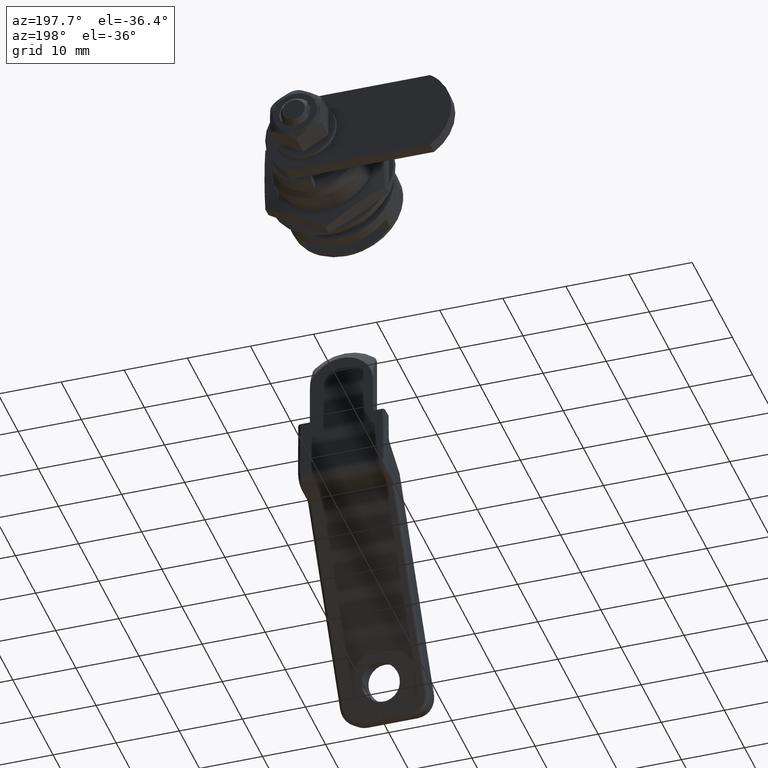
[diagram: clean part render]
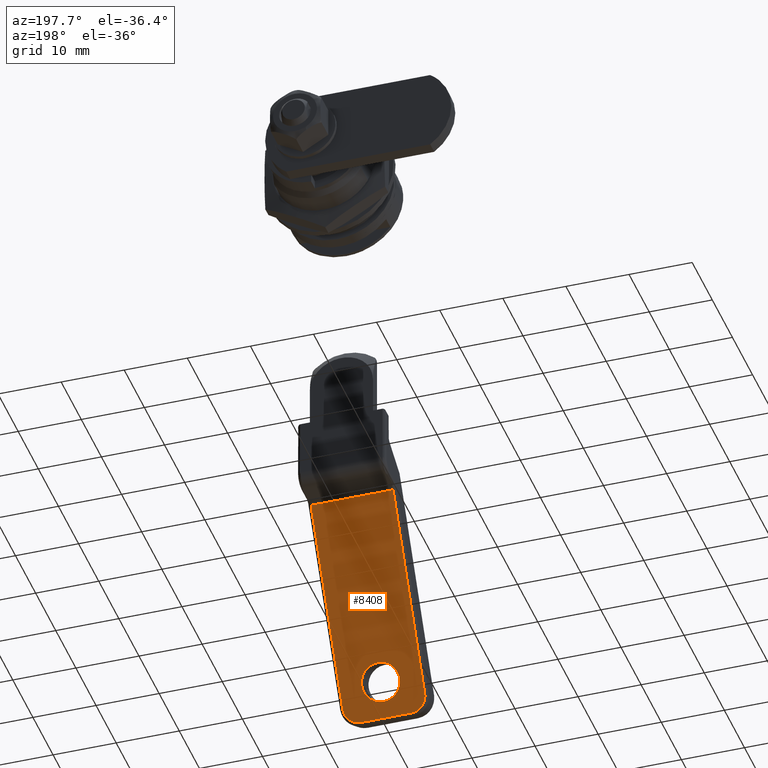
[diagram: same view with one face highlighted and labeled with its STEP entity id]
A machine part, auxiliary view. The second image highlights one B-rep face of the part: STEP entity #8408.
In plain terms, the highlighted face is a freeform B-spline surface patch.
Its self-contained STEP definition (entity closure, byte-faithful):
#5621=CARTESIAN_POINT('',(-17.500003080389089,0.000008000000030,-109.561111621606600));
#5622=VERTEX_POINT('',#5621);
#5623=CARTESIAN_POINT('',(-16.186197517550490,-2.976790641444029,-107.285528014628100));
#5624=VERTEX_POINT('',#5623);
#5625=CARTESIAN_POINT('',(-17.500003080389089,0.000008000000030,-109.561111621606600));
#5626=CARTESIAN_POINT('',(-17.500003080389085,-2.648087799983986,-109.561111621606600));
#5627=CARTESIAN_POINT('',(-16.186197517550493,-2.976790641444029,-107.285528014628060));
#5635=(BOUNDED_CURVE()B_SPLINE_CURVE(2,(#5625,#5626,#5627),.UNSPECIFIED.,.F.,.U.)B_SPLINE_CURVE_WITH_KNOTS((3,3),(0.500000000000000,0.728526070999808),.UNSPECIFIED.)CURVE()GEOMETRIC_REPRESENTATION_ITEM()RATIONAL_B_SPLINE_CURVE((1.0,0.732265053928298,0.954005430217489))REPRESENTATION_ITEM(''));
#5636=EDGE_CURVE('',#5622,#5624,#5635,.T.);
#5638=CARTESIAN_POINT('',(-15.986916079923970,2.999893769187120,-106.940361587064600));
#5639=VERTEX_POINT('',#5638);
#5640=CARTESIAN_POINT('',(-15.986916079923970,2.999893769187120,-106.940361587064530));
#5641=CARTESIAN_POINT('',(-15.993460844815868,3.000008000000030,-106.951697480381510));
#5642=CARTESIAN_POINT('',(-16.000005859232601,3.000008000000030,-106.963033805889200));
#5643=CARTESIAN_POINT('',(-17.500003080389082,3.000008000000030,-109.561111621606600));
#5644=CARTESIAN_POINT('',(-17.500003080389089,0.000008000000030,-109.561111621606600));
#5652=(BOUNDED_CURVE()B_SPLINE_CURVE(2,(#5640,#5641,#5642,#5643,#5644),.UNSPECIFIED.,.F.,.U.)B_SPLINE_CURVE_WITH_KNOTS((3,2,3),(0.248460105592032,0.250000000000000,0.500000000000000),.UNSPECIFIED.)CURVE()GEOMETRIC_REPRESENTATION_ITEM()RATIONAL_B_SPLINE_CURVE((0.996414027931508,0.998195901480870,1.0,0.707106781186548,1.0))REPRESENTATION_ITEM(''));
#5653=EDGE_CURVE('',#5639,#5622,#5652,.T.);
#5724=CARTESIAN_POINT('',(-14.500008638076110,0.000008000000030,-104.364955990171790));
#5725=VERTEX_POINT('',#5724);
#5726=CARTESIAN_POINT('',(-16.186197517550497,-2.976790641444030,-107.285528014628080));
#5727=CARTESIAN_POINT('',(-16.093463077528853,-2.999991999999971,-107.124906856151920));
#5728=CARTESIAN_POINT('',(-16.000005859232601,-2.999991999999971,-106.963033805889200));
#5729=CARTESIAN_POINT('',(-14.500008638076119,-2.999991999999971,-104.364955990171820));
#5730=CARTESIAN_POINT('',(-14.500008638076110,0.000008000000030,-104.364955990171790));
#5738=(BOUNDED_CURVE()B_SPLINE_CURVE(2,(#5726,#5727,#5728,#5729,#5730),.UNSPECIFIED.,.F.,.U.)B_SPLINE_CURVE_WITH_KNOTS((3,2,3),(0.728526070999809,0.750000000000000,1.0),.UNSPECIFIED.)CURVE()GEOMETRIC_REPRESENTATION_ITEM()RATIONAL_B_SPLINE_CURVE((0.954005430217491,0.974841727258250,1.0,0.707106781186548,1.0))REPRESENTATION_ITEM(''));
#5739=EDGE_CURVE('',#5624,#5725,#5738,.T.);
#5773=CARTESIAN_POINT('',(-14.500008638076110,0.000008000000030,-104.364955990171790));
#5774=CARTESIAN_POINT('',(-14.500008638076110,2.973941630552735,-104.364955990171820));
#5775=CARTESIAN_POINT('',(-15.986916079923962,2.999893769187120,-106.940361587064540));
#5783=(BOUNDED_CURVE()B_SPLINE_CURVE(2,(#5773,#5774,#5775),.UNSPECIFIED.,.F.,.U.)B_SPLINE_CURVE_WITH_KNOTS((3,3),(0.0,0.248460105592032),.UNSPECIFIED.)CURVE()GEOMETRIC_REPRESENTATION_ITEM()RATIONAL_B_SPLINE_CURVE((1.0,0.708910879705678,0.996414027931508))REPRESENTATION_ITEM(''));
#5784=EDGE_CURVE('',#5725,#5639,#5783,.T.);
#6863=CARTESIAN_POINT('',(-1.788712007450610,6.500016000000000,-82.348290012904812));
#6864=VERTEX_POINT('',#6863);
#6926=CARTESIAN_POINT('',(-17.500003720853151,6.500016000000000,-109.561112730925600));
#6927=VERTEX_POINT('',#6926);
#6949=CARTESIAN_POINT('',(-17.500003720853151,6.500016000000000,-109.561112730925600));
#6950=CARTESIAN_POINT('',(-1.788712007450610,6.500016000000000,-82.348290012904812));
#6951=QUASI_UNIFORM_CURVE('',1,(#6949,#6950),.UNSPECIFIED.,.F.,.U.);
#6952=EDGE_CURVE('',#6927,#6864,#6951,.T.);
#6974=CARTESIAN_POINT('',(-18.750001405154300,4.000016000000001,-111.726177577364000));
#6975=VERTEX_POINT('',#6974);
#7026=CARTESIAN_POINT('',(-18.750001405154300,4.000016000000001,-111.726177577364000));
#7027=CARTESIAN_POINT('',(-18.750001405150226,6.500016000000001,-111.726177577356740));
#7028=CARTESIAN_POINT('',(-17.500003720853151,6.500016000000001,-109.561112730925600));
#7036=(BOUNDED_CURVE()B_SPLINE_CURVE(2,(#7026,#7027,#7028),.UNSPECIFIED.,.F.,.U.)CURVE()GEOMETRIC_REPRESENTATION_ITEM()QUASI_UNIFORM_CURVE()RATIONAL_B_SPLINE_CURVE((1.0,0.707106781186548,1.0))REPRESENTATION_ITEM(''));
#7037=EDGE_CURVE('',#6975,#6927,#7036,.T.);
#7056=CARTESIAN_POINT('',(-18.750001405150201,-3.999992000000000,-111.726177577356790));
#7057=VERTEX_POINT('',#7056);
#7081=CARTESIAN_POINT('',(-18.750001405150201,-3.999992000000000,-111.726177577356790));
#7082=CARTESIAN_POINT('',(-18.750001405154300,4.000016000000001,-111.726177577364000));
#7083=QUASI_UNIFORM_CURVE('',1,(#7081,#7082),.UNSPECIFIED.,.F.,.U.);
#7084=EDGE_CURVE('',#7057,#6975,#7083,.T.);
#7106=CARTESIAN_POINT('',(-17.500003720853151,-6.499992000000000,-109.561112730925600));
#7107=VERTEX_POINT('',#7106);
#7139=CARTESIAN_POINT('',(-17.500003720853151,-6.499992000000000,-109.561112730925600));
#7140=CARTESIAN_POINT('',(-18.750001405150226,-6.499992000000000,-111.726177577356740));
#7141=CARTESIAN_POINT('',(-18.750001405150229,-3.999992000000000,-111.726177577356790));
#7149=(BOUNDED_CURVE()B_SPLINE_CURVE(2,(#7139,#7140,#7141),.UNSPECIFIED.,.F.,.U.)CURVE()GEOMETRIC_REPRESENTATION_ITEM()QUASI_UNIFORM_CURVE()RATIONAL_B_SPLINE_CURVE((1.0,0.707106781186548,1.0))REPRESENTATION_ITEM(''));
#7150=EDGE_CURVE('',#7107,#7057,#7149,.T.);
#7169=CARTESIAN_POINT('',(-1.788712007450610,-6.499992000000000,-82.348290012904812));
#7170=VERTEX_POINT('',#7169);
#7194=CARTESIAN_POINT('',(-1.788712007450610,-6.499992000000000,-82.348290012904812));
#7195=CARTESIAN_POINT('',(-17.500003720853151,-6.499992000000000,-109.561112730925600));
#7196=QUASI_UNIFORM_CURVE('',1,(#7194,#7195),.UNSPECIFIED.,.F.,.U.);
#7197=EDGE_CURVE('',#7170,#7107,#7196,.T.);
#8378=CARTESIAN_POINT('',(-1.788712007450610,-6.499992000000000,-82.348290012904812));
#8379=CARTESIAN_POINT('',(-1.788712007450610,6.500016000000000,-82.348290012904812));
#8380=QUASI_UNIFORM_CURVE('',1,(#8378,#8379),.UNSPECIFIED.,.F.,.U.);
#8381=EDGE_CURVE('',#7170,#6864,#8380,.T.);
#8389=CARTESIAN_POINT('',(-19.597219529120331,-7.149342252368688,-113.193606037833110));
#8390=CARTESIAN_POINT('',(-0.941495096650651,-7.149342252368688,-80.880863653705873));
#8391=CARTESIAN_POINT('',(-19.597219529120331,7.149366717285201,-113.193606037833110));
#8392=CARTESIAN_POINT('',(-0.941495096650651,7.149366717285201,-80.880863653705873));
#8393=B_SPLINE_SURFACE_WITH_KNOTS('',1,1,((#8389,#8391),(#8390,#8392)),.UNSPECIFIED.,.F.,.F.,.U.,(2,2),(2,2),(0.0,37.311517986852543),(0.0,14.298708969653889),.UNSPECIFIED.);
#8394=ORIENTED_EDGE('',*,*,#7037,.T.);
#8395=ORIENTED_EDGE('',*,*,#6952,.T.);
#8396=ORIENTED_EDGE('',*,*,#8381,.F.);
#8397=ORIENTED_EDGE('',*,*,#7197,.T.);
#8398=ORIENTED_EDGE('',*,*,#7150,.T.);
#8399=ORIENTED_EDGE('',*,*,#7084,.T.);
#8400=EDGE_LOOP('',(#8394,#8395,#8396,#8397,#8398,#8399));
#8401=FACE_OUTER_BOUND('',#8400,.T.);
#8402=ORIENTED_EDGE('',*,*,#5784,.T.);
#8403=ORIENTED_EDGE('',*,*,#5653,.T.);
#8404=ORIENTED_EDGE('',*,*,#5636,.T.);
#8405=ORIENTED_EDGE('',*,*,#5739,.T.);
#8406=EDGE_LOOP('',(#8402,#8403,#8404,#8405));
#8407=FACE_BOUND('',#8406,.T.);
#8408=ADVANCED_FACE('',(#8401,#8407),#8393,.F.);